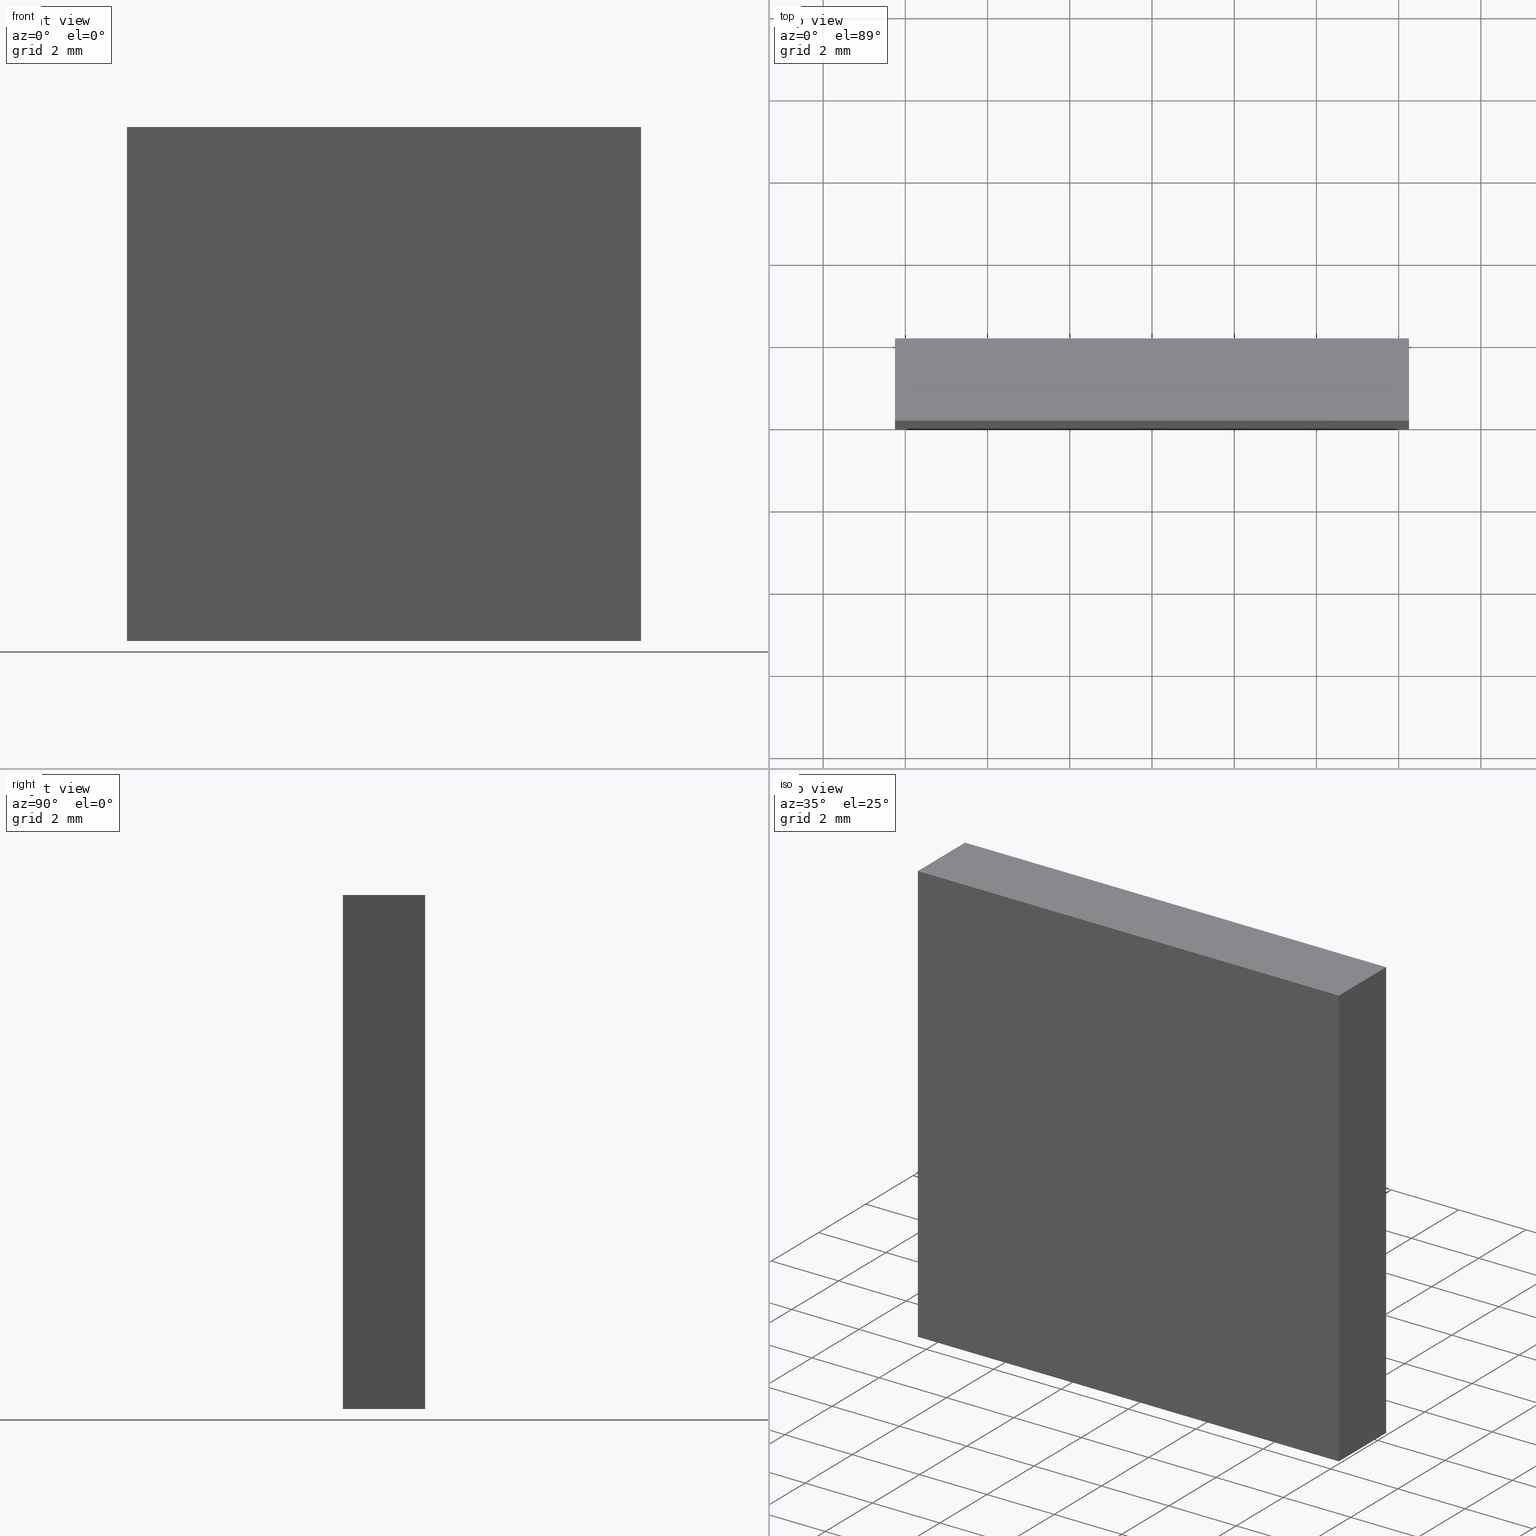
[diagram: canonical four-view strip — front | top / right | iso, engineering-drawing reading convention]
A machine part, canonical four-view strip (front | top / right | iso — engineering-drawing reading convention). The complete STEP part file that produces these views, byte-faithful:
ISO-10303-21;
HEADER;
FILE_DESCRIPTION (( 'STEP AP214' ),
    '1' );
FILE_NAME ('258510.STEP',
    '2019-08-07T02:07:14',
    ( 'user' ),
    ( '΢���й�' ),
    'SwSTEP 2.0',
    'SolidWorks 2016',
    '' );
FILE_SCHEMA (( 'AUTOMOTIVE_DESIGN' ));
ENDSEC;

DATA;
#1 = MANIFOLD_SOLID_BREP ( '͹̨-����1', #22 ) ;
#2 = FACE_OUTER_BOUND ( 'NONE', #91, .T. ) ;
#3 = AXIS2_PLACEMENT_3D ( 'NONE', #98, #193, #151 ) ;
#4 = ORIENTED_EDGE ( 'NONE', *, *, #126, .F. ) ;
#5 = DIRECTION ( 'NONE',  ( -1.000000000000000000, -0.0000000000000000000, -0.0000000000000000000 ) ) ;
#6 = AXIS2_PLACEMENT_3D ( 'NONE', #16, #116, #200 ) ;
#7 = ORIENTED_EDGE ( 'NONE', *, *, #73, .F. ) ;
#8 = EDGE_CURVE ( 'NONE', #190, #111, #85, .T. ) ;
#9 = VECTOR ( 'NONE', #32, 1000.000000000000000 ) ;
#10 = ORIENTED_EDGE ( 'NONE', *, *, #69, .T. ) ;
#11 = DIRECTION ( 'NONE',  ( 0.0000000000000000000, 0.0000000000000000000, -1.000000000000000000 ) ) ;
#12 = APPLICATION_CONTEXT ( 'automotive_design' ) ;
#13 = UNCERTAINTY_MEASURE_WITH_UNIT (LENGTH_MEASURE( 1.000000000000000100E-005 ), #168, 'distance_accuracy_value', 'NONE');
#14 = DIRECTION ( 'NONE',  ( 0.0000000000000000000, 1.000000000000000000, 0.0000000000000000000 ) ) ;
#15 = DIRECTION ( 'NONE',  ( 1.387778780781445700E-016, 0.0000000000000000000, 1.000000000000000000 ) ) ;
#16 = CARTESIAN_POINT ( 'NONE',  ( -6.250000000000002700, 2.000000000000000000, -6.250000000000001800 ) ) ;
#17 = COLOUR_RGB ( '',1.000000000000000000, 1.000000000000000000, 1.000000000000000000 ) ;
#18 = DIRECTION ( 'NONE',  ( 1.000000000000000000, 0.0000000000000000000, 0.0000000000000000000 ) ) ;
#19 = ORIENTED_EDGE ( 'NONE', *, *, #73, .T. ) ;
#20 = MECHANICAL_DESIGN_GEOMETRIC_PRESENTATION_REPRESENTATION (  '', ( #194 ), #92 ) ;
#21 = DIRECTION ( 'NONE',  ( 1.387778780781445700E-016, 0.0000000000000000000, 1.000000000000000000 ) ) ;
#22 = CLOSED_SHELL ( 'NONE', ( #106, #43, #120, #53, #182, #167 ) ) ;
#23 = PRODUCT_DEFINITION_FORMATION_WITH_SPECIFIED_SOURCE ( '�κ�', '', #70, .NOT_KNOWN. ) ;
#24 = DIRECTION ( 'NONE',  ( -0.0000000000000000000, -1.000000000000000000, -0.0000000000000000000 ) ) ;
#25 = LINE ( 'NONE', #173, #50 ) ;
#26 = CARTESIAN_POINT ( 'NONE',  ( 6.249999999999997300, 0.0000000000000000000, -6.250000000000001800 ) ) ;
#27 =( NAMED_UNIT ( * ) PLANE_ANGLE_UNIT ( ) SI_UNIT ( $, .RADIAN. ) );
#28 = ORIENTED_EDGE ( 'NONE', *, *, #150, .T. ) ;
#29 = LINE ( 'NONE', #61, #189 ) ;
#30 = CARTESIAN_POINT ( 'NONE',  ( 6.249999999999997300, 2.000000000000000000, -6.250000000000001800 ) ) ;
#31 = AXIS2_PLACEMENT_3D ( 'NONE', #138, #14, #113 ) ;
#32 = DIRECTION ( 'NONE',  ( -1.000000000000000000, -0.0000000000000000000, -0.0000000000000000000 ) ) ;
#33 = EDGE_CURVE ( 'NONE', #190, #54, #169, .T. ) ;
#34 = APPLICATION_CONTEXT ( 'automotive_design' ) ;
#35 = CARTESIAN_POINT ( 'NONE',  ( -6.250000000000002700, 0.0000000000000000000, -6.250000000000001800 ) ) ;
#36 = EDGE_LOOP ( 'NONE', ( #163, #128, #156, #177 ) ) ;
#37 = CARTESIAN_POINT ( 'NONE',  ( -6.250000000000000900, 2.000000000000000000, 6.249999999999998200 ) ) ;
#38 = PLANE ( 'NONE',  #148 ) ;
#39 = VECTOR ( 'NONE', #21, 1000.000000000000000 ) ;
#40 = LINE ( 'NONE', #66, #9 ) ;
#41 = SURFACE_STYLE_FILL_AREA ( #59 ) ;
#42 = CARTESIAN_POINT ( 'NONE',  ( -6.250000000000000900, 2.000000000000000000, 6.249999999999998200 ) ) ;
#43 = ADVANCED_FACE ( 'NONE', ( #2 ), #108, .F. ) ;
#44 =( NAMED_UNIT ( * ) SI_UNIT ( $, .STERADIAN. ) SOLID_ANGLE_UNIT ( ) );
#45 = VECTOR ( 'NONE', #24, 1000.000000000000000 ) ;
#46 = STYLED_ITEM ( 'NONE', ( #107 ), #1 ) ;
#47 = ORIENTED_EDGE ( 'NONE', *, *, #90, .T. ) ;
#48 = CARTESIAN_POINT ( 'NONE',  ( 6.249999999999997300, 2.000000000000000000, -6.250000000000001800 ) ) ;
#49 = PLANE ( 'NONE',  #31 ) ;
#50 = VECTOR ( 'NONE', #65, 1000.000000000000000 ) ;
#51 = CARTESIAN_POINT ( 'NONE',  ( 0.0000000000000000000, 0.0000000000000000000, 0.0000000000000000000 ) ) ;
#52 = DIRECTION ( 'NONE',  ( -0.0000000000000000000, -1.000000000000000000, -0.0000000000000000000 ) ) ;
#53 = ADVANCED_FACE ( 'NONE', ( #121 ), #38, .F. ) ;
#54 = VERTEX_POINT ( 'NONE', #48 ) ;
#55 = PRESENTATION_STYLE_ASSIGNMENT (( #93 ) ) ;
#56 = LINE ( 'NONE', #117, #96 ) ;
#57 = UNCERTAINTY_MEASURE_WITH_UNIT (LENGTH_MEASURE( 1.000000000000000100E-005 ), #124, 'distance_accuracy_value', 'NONE');
#58 = ORIENTED_EDGE ( 'NONE', *, *, #101, .F. ) ;
#59 = FILL_AREA_STYLE ('',( #86 ) ) ;
#60 = EDGE_LOOP ( 'NONE', ( #10, #4, #87, #67 ) ) ;
#61 = CARTESIAN_POINT ( 'NONE',  ( -6.250000000000002700, 2.000000000000000000, -6.250000000000001800 ) ) ;
#62 = PRODUCT_DEFINITION_CONTEXT ( 'detailed design', #34, 'design' ) ;
#63 = EDGE_CURVE ( 'NONE', #111, #183, #80, .T. ) ;
#64 =( NAMED_UNIT ( * ) PLANE_ANGLE_UNIT ( ) SI_UNIT ( $, .RADIAN. ) );
#65 = DIRECTION ( 'NONE',  ( -0.0000000000000000000, -1.000000000000000000, -0.0000000000000000000 ) ) ;
#66 = CARTESIAN_POINT ( 'NONE',  ( -6.250000000000002700, 0.0000000000000000000, -6.250000000000001800 ) ) ;
#67 = ORIENTED_EDGE ( 'NONE', *, *, #101, .T. ) ;
#68 = DIRECTION ( 'NONE',  ( -1.000000000000000000, 0.0000000000000000000, 1.387778780781445700E-016 ) ) ;
#69 = EDGE_CURVE ( 'NONE', #71, #179, #127, .T. ) ;
#70 = PRODUCT ( '258510', '258510', '', ( #125 ) ) ;
#71 = VERTEX_POINT ( 'NONE', #35 ) ;
#72 = DIRECTION ( 'NONE',  ( -1.387778780781445700E-016, -0.0000000000000000000, -1.000000000000000000 ) ) ;
#73 = EDGE_CURVE ( 'NONE', #54, #141, #29, .T. ) ;
#74 = ORIENTED_EDGE ( 'NONE', *, *, #178, .T. ) ;
#75 =( NAMED_UNIT ( * ) PLANE_ANGLE_UNIT ( ) SI_UNIT ( $, .RADIAN. ) );
#76 = CARTESIAN_POINT ( 'NONE',  ( -6.250000000000000900, 0.0000000000000000000, 6.249999999999998200 ) ) ;
#77 = PLANE ( 'NONE',  #99 ) ;
#78 = CARTESIAN_POINT ( 'NONE',  ( 6.249999999999997300, 2.000000000000000000, -6.250000000000001800 ) ) ;
#79 = SURFACE_STYLE_FILL_AREA ( #112 ) ;
#80 = LINE ( 'NONE', #26, #161 ) ;
#81 = CARTESIAN_POINT ( 'NONE',  ( -6.250000000000000900, 2.000000000000000000, 6.249999999999998200 ) ) ;
#82 = VECTOR ( 'NONE', #143, 1000.000000000000000 ) ;
#83 = ORIENTED_EDGE ( 'NONE', *, *, #126, .T. ) ;
#84 = COLOUR_RGB ( '',1.000000000000000000, 1.000000000000000000, 1.000000000000000000 ) ;
#85 = LINE ( 'NONE', #88, #45 ) ;
#86 = FILL_AREA_STYLE_COLOUR ( '', #17 ) ;
#87 = ORIENTED_EDGE ( 'NONE', *, *, #178, .F. ) ;
#88 = CARTESIAN_POINT ( 'NONE',  ( 6.249999999999999100, 2.000000000000000000, 6.249999999999998200 ) ) ;
#89 = ADVANCED_BREP_SHAPE_REPRESENTATION ( '258510', ( #1, #180 ), #135 ) ;
#90 = EDGE_CURVE ( 'NONE', #179, #111, #162, .T. ) ;
#91 = EDGE_LOOP ( 'NONE', ( #28, #58, #7, #119 ) ) ;
#92 =( GEOMETRIC_REPRESENTATION_CONTEXT ( 3 ) GLOBAL_UNCERTAINTY_ASSIGNED_CONTEXT ( ( #147 ) ) GLOBAL_UNIT_ASSIGNED_CONTEXT ( ( #184, #75, #172 ) ) REPRESENTATION_CONTEXT ( 'NONE', 'WORKASPACE' ) );
#93 = SURFACE_STYLE_USAGE ( .BOTH. , #197 ) ;
#94 = EDGE_CURVE ( 'NONE', #100, #190, #185, .T. ) ;
#95 = CARTESIAN_POINT ( 'NONE',  ( 6.249999999999999100, 2.000000000000000000, 6.249999999999998200 ) ) ;
#96 = VECTOR ( 'NONE', #188, 1000.000000000000000 ) ;
#97 = CARTESIAN_POINT ( 'NONE',  ( -6.250000000000002700, 2.000000000000000000, -6.250000000000001800 ) ) ;
#98 = CARTESIAN_POINT ( 'NONE',  ( -6.250000000000002700, 2.000000000000000000, -6.250000000000001800 ) ) ;
#99 = AXIS2_PLACEMENT_3D ( 'NONE', #51, #114, #199 ) ;
#100 = VERTEX_POINT ( 'NONE', #81 ) ;
#101 = EDGE_CURVE ( 'NONE', #141, #71, #56, .T. ) ;
#102 = APPLICATION_PROTOCOL_DEFINITION ( 'draft international standard', 'automotive_design', 1998, #34 ) ;
#103 = LINE ( 'NONE', #97, #137 ) ;
#104 = ORIENTED_EDGE ( 'NONE', *, *, #33, .F. ) ;
#105 = SURFACE_SIDE_STYLE ('',( #41 ) ) ;
#106 = ADVANCED_FACE ( 'NONE', ( #132 ), #175, .F. ) ;
#107 = PRESENTATION_STYLE_ASSIGNMENT (( #133 ) ) ;
#108 = PLANE ( 'NONE',  #3 ) ;
#109 = PRESENTATION_LAYER_ASSIGNMENT (  '', '', ( #194 ) ) ;
#110 = FACE_OUTER_BOUND ( 'NONE', #145, .T. ) ;
#111 = VERTEX_POINT ( 'NONE', #202 ) ;
#112 = FILL_AREA_STYLE ('',( #198 ) ) ;
#113 = DIRECTION ( 'NONE',  ( 0.0000000000000000000, -0.0000000000000000000, 1.000000000000000000 ) ) ;
#114 = DIRECTION ( 'NONE',  ( 0.0000000000000000000, 1.000000000000000000, 0.0000000000000000000 ) ) ;
#115 = ORIENTED_EDGE ( 'NONE', *, *, #8, .T. ) ;
#116 = DIRECTION ( 'NONE',  ( 1.000000000000000000, 0.0000000000000000000, -1.387778780781445700E-016 ) ) ;
#117 = CARTESIAN_POINT ( 'NONE',  ( -6.250000000000002700, 2.000000000000000000, -6.250000000000001800 ) ) ;
#118 = FACE_OUTER_BOUND ( 'NONE', #36, .T. ) ;
#119 = ORIENTED_EDGE ( 'NONE', *, *, #174, .T. ) ;
#120 = ADVANCED_FACE ( 'NONE', ( #195 ), #139, .F. ) ;
#121 = FACE_OUTER_BOUND ( 'NONE', #171, .T. ) ;
#122 = ORIENTED_EDGE ( 'NONE', *, *, #8, .F. ) ;
#123 = DIRECTION ( 'NONE',  ( -1.000000000000000000, 0.0000000000000000000, -0.0000000000000000000 ) ) ;
#124 =( LENGTH_UNIT ( ) NAMED_UNIT ( * ) SI_UNIT ( .MILLI., .METRE. ) );
#125 = PRODUCT_CONTEXT ( 'NONE', #12, 'mechanical' ) ;
#126 = EDGE_CURVE ( 'NONE', #100, #179, #181, .T. ) ;
#127 = LINE ( 'NONE', #154, #39 ) ;
#128 = ORIENTED_EDGE ( 'NONE', *, *, #90, .F. ) ;
#129 = DIRECTION ( 'NONE',  ( 1.000000000000000000, 0.0000000000000000000, 0.0000000000000000000 ) ) ;
#130 = ORIENTED_EDGE ( 'NONE', *, *, #174, .F. ) ;
#131 = PRODUCT_DEFINITION_SHAPE ( 'NONE', 'NONE',  #170 ) ;
#132 = FACE_OUTER_BOUND ( 'NONE', #134, .T. ) ;
#133 = SURFACE_STYLE_USAGE ( .BOTH. , #105 ) ;
#134 = EDGE_LOOP ( 'NONE', ( #166, #130, #104, #115 ) ) ;
#135 =( GEOMETRIC_REPRESENTATION_CONTEXT ( 3 ) GLOBAL_UNCERTAINTY_ASSIGNED_CONTEXT ( ( #57 ) ) GLOBAL_UNIT_ASSIGNED_CONTEXT ( ( #124, #64, #157 ) ) REPRESENTATION_CONTEXT ( 'NONE', 'WORKASPACE' ) );
#136 = APPLICATION_PROTOCOL_DEFINITION ( 'draft international standard', 'automotive_design', 1998, #12 ) ;
#137 = VECTOR ( 'NONE', #15, 1000.000000000000000 ) ;
#138 = CARTESIAN_POINT ( 'NONE',  ( 0.0000000000000000000, 2.000000000000000000, 0.0000000000000000000 ) ) ;
#139 = PLANE ( 'NONE',  #6 ) ;
#140 = ORIENTED_EDGE ( 'NONE', *, *, #33, .T. ) ;
#141 = VERTEX_POINT ( 'NONE', #158 ) ;
#142 = CARTESIAN_POINT ( 'NONE',  ( 0.0000000000000000000, 0.0000000000000000000, 0.0000000000000000000 ) ) ;
#143 = DIRECTION ( 'NONE',  ( 1.000000000000000000, 0.0000000000000000000, 0.0000000000000000000 ) ) ;
#144 = VECTOR ( 'NONE', #52, 1000.000000000000000 ) ;
#145 = EDGE_LOOP ( 'NONE', ( #140, #19, #74, #196 ) ) ;
#146 = AXIS2_PLACEMENT_3D ( 'NONE', #78, #68, #159 ) ;
#147 = UNCERTAINTY_MEASURE_WITH_UNIT (LENGTH_MEASURE( 1.000000000000000100E-005 ), #184, 'distance_accuracy_value', 'NONE');
#148 = AXIS2_PLACEMENT_3D ( 'NONE', #42, #11, #123 ) ;
#149 = SHAPE_DEFINITION_REPRESENTATION ( #131, #89 ) ;
#150 = EDGE_CURVE ( 'NONE', #183, #71, #40, .T. ) ;
#151 = DIRECTION ( 'NONE',  ( 1.000000000000000000, 0.0000000000000000000, -0.0000000000000000000 ) ) ;
#152 = ORIENTED_EDGE ( 'NONE', *, *, #94, .F. ) ;
#153 = PRODUCT_RELATED_PRODUCT_CATEGORY ( 'part', '', ( #70 ) ) ;
#154 = CARTESIAN_POINT ( 'NONE',  ( -6.250000000000002700, 0.0000000000000000000, -6.250000000000001800 ) ) ;
#155 = VECTOR ( 'NONE', #129, 1000.000000000000000 ) ;
#156 = ORIENTED_EDGE ( 'NONE', *, *, #69, .F. ) ;
#157 =( NAMED_UNIT ( * ) SI_UNIT ( $, .STERADIAN. ) SOLID_ANGLE_UNIT ( ) );
#158 = CARTESIAN_POINT ( 'NONE',  ( -6.250000000000002700, 2.000000000000000000, -6.250000000000001800 ) ) ;
#159 = DIRECTION ( 'NONE',  ( 1.387778780781445700E-016, 0.0000000000000000000, 1.000000000000000000 ) ) ;
#160 = CARTESIAN_POINT ( 'NONE',  ( -6.250000000000000900, 0.0000000000000000000, 6.249999999999998200 ) ) ;
#161 = VECTOR ( 'NONE', #72, 1000.000000000000000 ) ;
#162 = LINE ( 'NONE', #160, #155 ) ;
#163 = ORIENTED_EDGE ( 'NONE', *, *, #63, .F. ) ;
#164 = DIRECTION ( 'NONE',  ( 0.0000000000000000000, 0.0000000000000000000, 1.000000000000000000 ) ) ;
#165 = VECTOR ( 'NONE', #192, 1000.000000000000000 ) ;
#166 = ORIENTED_EDGE ( 'NONE', *, *, #63, .T. ) ;
#167 = ADVANCED_FACE ( 'NONE', ( #118 ), #77, .F. ) ;
#168 =( LENGTH_UNIT ( ) NAMED_UNIT ( * ) SI_UNIT ( .MILLI., .METRE. ) );
#169 = LINE ( 'NONE', #30, #165 ) ;
#170 = PRODUCT_DEFINITION ( 'δ֪', '', #23, #62 ) ;
#171 = EDGE_LOOP ( 'NONE', ( #47, #122, #152, #83 ) ) ;
#172 =( NAMED_UNIT ( * ) SI_UNIT ( $, .STERADIAN. ) SOLID_ANGLE_UNIT ( ) );
#173 = CARTESIAN_POINT ( 'NONE',  ( 6.249999999999997300, 2.000000000000000000, -6.250000000000001800 ) ) ;
#174 = EDGE_CURVE ( 'NONE', #54, #183, #25, .T. ) ;
#175 = PLANE ( 'NONE',  #146 ) ;
#176 = MECHANICAL_DESIGN_GEOMETRIC_PRESENTATION_REPRESENTATION (  '', ( #46 ), #191 ) ;
#177 = ORIENTED_EDGE ( 'NONE', *, *, #150, .F. ) ;
#178 = EDGE_CURVE ( 'NONE', #141, #100, #103, .T. ) ;
#179 = VERTEX_POINT ( 'NONE', #76 ) ;
#180 = AXIS2_PLACEMENT_3D ( 'NONE', #142, #164, #18 ) ;
#181 = LINE ( 'NONE', #187, #144 ) ;
#182 = ADVANCED_FACE ( 'NONE', ( #110 ), #49, .T. ) ;
#183 = VERTEX_POINT ( 'NONE', #186 ) ;
#184 =( LENGTH_UNIT ( ) NAMED_UNIT ( * ) SI_UNIT ( .MILLI., .METRE. ) );
#185 = LINE ( 'NONE', #37, #82 ) ;
#186 = CARTESIAN_POINT ( 'NONE',  ( 6.249999999999997300, 0.0000000000000000000, -6.250000000000001800 ) ) ;
#187 = CARTESIAN_POINT ( 'NONE',  ( -6.250000000000000900, 2.000000000000000000, 6.249999999999998200 ) ) ;
#188 = DIRECTION ( 'NONE',  ( -0.0000000000000000000, -1.000000000000000000, -0.0000000000000000000 ) ) ;
#189 = VECTOR ( 'NONE', #5, 1000.000000000000000 ) ;
#190 = VERTEX_POINT ( 'NONE', #95 ) ;
#191 =( GEOMETRIC_REPRESENTATION_CONTEXT ( 3 ) GLOBAL_UNCERTAINTY_ASSIGNED_CONTEXT ( ( #13 ) ) GLOBAL_UNIT_ASSIGNED_CONTEXT ( ( #168, #27, #44 ) ) REPRESENTATION_CONTEXT ( 'NONE', 'WORKASPACE' ) );
#192 = DIRECTION ( 'NONE',  ( -1.387778780781445700E-016, -0.0000000000000000000, -1.000000000000000000 ) ) ;
#193 = DIRECTION ( 'NONE',  ( 0.0000000000000000000, 0.0000000000000000000, 1.000000000000000000 ) ) ;
#194 = STYLED_ITEM ( 'NONE', ( #55 ), #89 ) ;
#195 = FACE_OUTER_BOUND ( 'NONE', #60, .T. ) ;
#196 = ORIENTED_EDGE ( 'NONE', *, *, #94, .T. ) ;
#197 = SURFACE_SIDE_STYLE ('',( #79 ) ) ;
#198 = FILL_AREA_STYLE_COLOUR ( '', #84 ) ;
#199 = DIRECTION ( 'NONE',  ( 0.0000000000000000000, -0.0000000000000000000, 1.000000000000000000 ) ) ;
#200 = DIRECTION ( 'NONE',  ( -1.387778780781445700E-016, 0.0000000000000000000, -1.000000000000000000 ) ) ;
#201 = PRESENTATION_LAYER_ASSIGNMENT (  '', '', ( #46 ) ) ;
#202 = CARTESIAN_POINT ( 'NONE',  ( 6.249999999999999100, 0.0000000000000000000, 6.249999999999998200 ) ) ;
ENDSEC;
END-ISO-10303-21;
